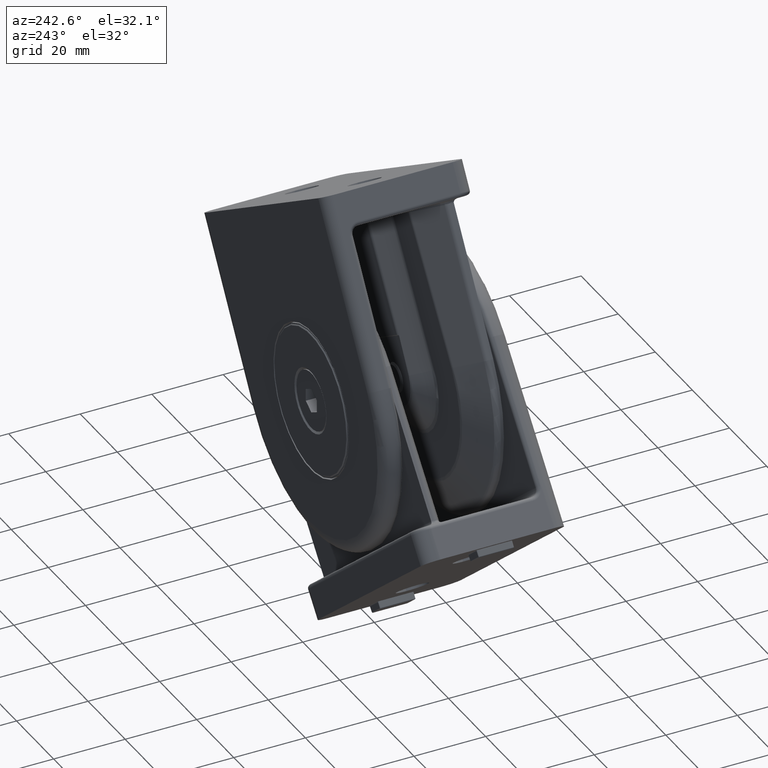
[diagram: clean part render]
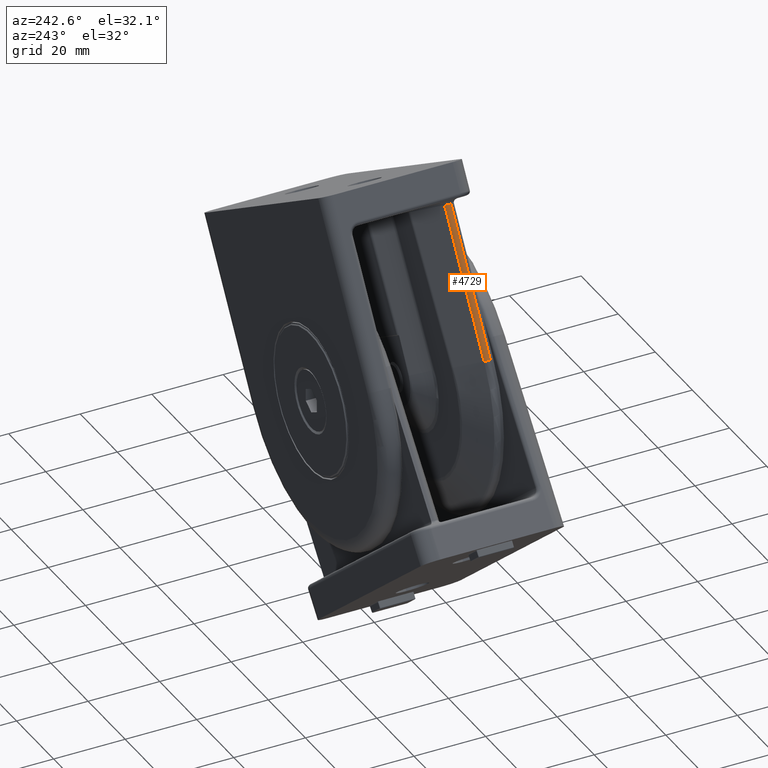
[diagram: same view with one face highlighted and labeled with its STEP entity id]
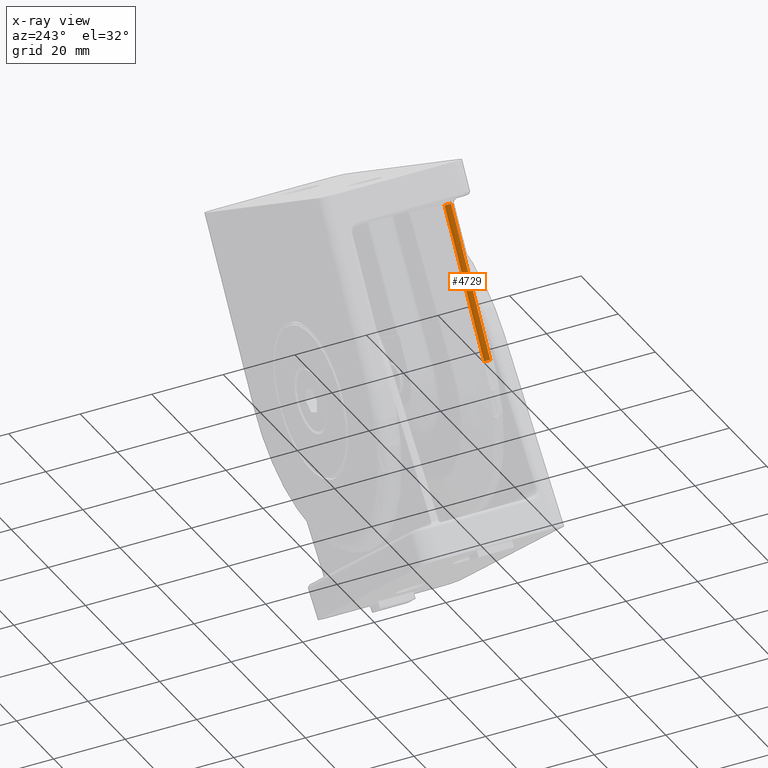
[diagram: x-ray of the same camera — body ghosted, the highlighted face saturated]
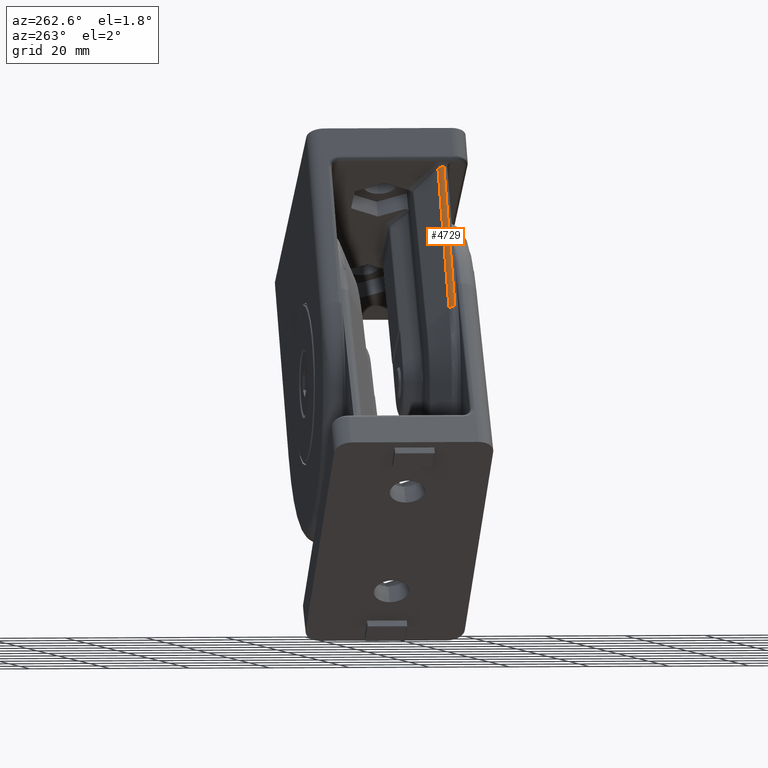
[diagram: same view with one face highlighted and labeled with its STEP entity id]
A machine part, auxiliary view. The second image highlights one B-rep face of the part: STEP entity #4729.
The next image is the same camera in x-ray: the body ghosted, the highlighted face saturated — about 0% of this face is hidden behind the body in this view.
A second angle (auxiliary view) of the same face is appended — the face is thin or edge-on in the first view.
In plain terms, the highlighted cylindrical surface (edge-blend (fillet) strip) has radius 1.5 mm, axis along (-0.5311, 0, -0.8473).
Its self-contained STEP definition (entity closure, byte-faithful):
#390=LINE('',#8355,#695);
#416=LINE('',#8723,#721);
#695=VECTOR('',#6179,40.);
#721=VECTOR('',#6281,40.);
#922=CYLINDRICAL_SURFACE('',#5219,1.5);
#1259=FACE_OUTER_BOUND('',#1624,.T.);
#1624=EDGE_LOOP('',(#3795,#3796,#3797,#3798));
#1960=CIRCLE('',#5183,1.49999999999997);
#1969=CIRCLE('',#5220,1.5);
#2211=VERTEX_POINT('',#7955);
#2294=VERTEX_POINT('',#8162);
#2332=VERTEX_POINT('',#8354);
#2334=VERTEX_POINT('',#8389);
#2825=EDGE_CURVE('',#2294,#2332,#390,.T.);
#2829=EDGE_CURVE('',#2294,#2334,#1960,.T.);
#2874=EDGE_CURVE('',#2332,#2211,#1969,.T.);
#2875=EDGE_CURVE('',#2211,#2334,#416,.T.);
#3795=ORIENTED_EDGE('',*,*,#2829,.F.);
#3796=ORIENTED_EDGE('',*,*,#2825,.T.);
#3797=ORIENTED_EDGE('',*,*,#2874,.T.);
#3798=ORIENTED_EDGE('',*,*,#2875,.T.);
#4729=ADVANCED_FACE('',(#1259),#922,.T.);
#5183=AXIS2_PLACEMENT_3D('',#8400,#6182,#6183);
#5219=AXIS2_PLACEMENT_3D('',#8721,#6277,#6278);
#5220=AXIS2_PLACEMENT_3D('',#8722,#6279,#6280);
#6179=DIRECTION('',(2.77251502107337E-17,-6.2638302327954E-17,-1.));
#6182=DIRECTION('center_axis',(2.04690127713723E-15,-1.33244281274221E-15,
1.));
#6183=DIRECTION('ref_axis',(1.,3.07224295104134E-32,-2.04690127713723E-15));
#6277=DIRECTION('center_axis',(1.69241314729445E-16,0.,-1.));
#6278=DIRECTION('ref_axis',(-1.,0.,-1.69241314729445E-16));
#6279=DIRECTION('center_axis',(-1.69241314729445E-16,0.,1.));
#6280=DIRECTION('ref_axis',(-1.,0.,-1.69241314729445E-16));
#6281=DIRECTION('',(-1.69241314729445E-16,0.,1.));
#7955=CARTESIAN_POINT('',(-37.8,-13.576434106245,-41.));
#8162=CARTESIAN_POINT('',(-36.907120668081,-12.2047911153801,-1.));
#8354=CARTESIAN_POINT('',(-36.9071206680867,-12.2047911153826,-41.));
#8355=CARTESIAN_POINT('',(-36.9071206680867,-12.2047911153826,-1.10683819833057E-14));
#8389=CARTESIAN_POINT('',(-37.8,-13.5764341062002,-1.));
#8400=CARTESIAN_POINT('Origin',(-36.3,-13.576434106245,-1.));
#8721=CARTESIAN_POINT('Origin',(-36.3,-13.576434106245,2.53861972094167E-16));
#8722=CARTESIAN_POINT('Origin',(-36.3,-13.576434106245,-41.));
#8723=CARTESIAN_POINT('',(-37.8,-13.576434106245,-1.92592994438724E-31));